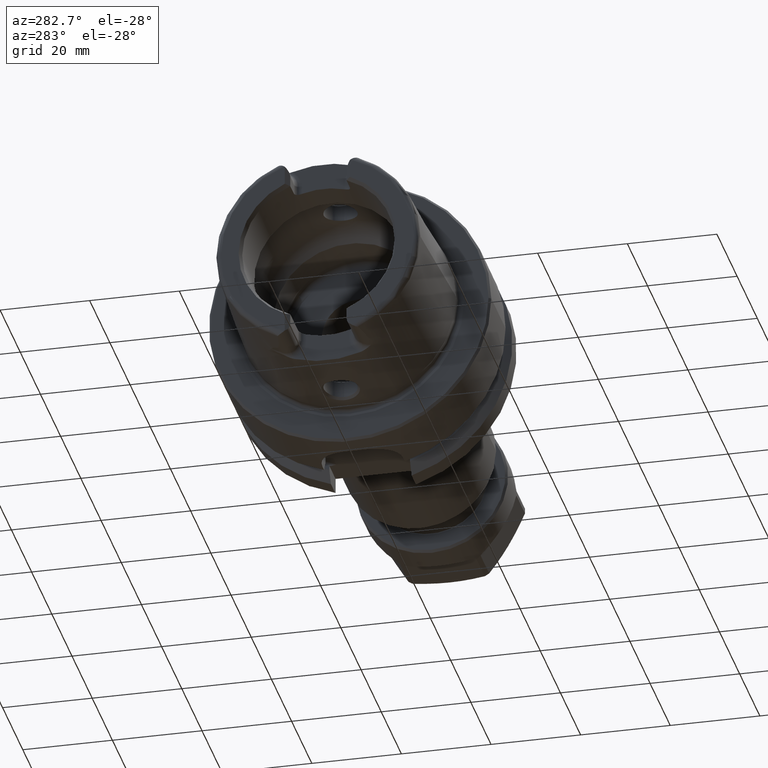
[diagram: clean part render]
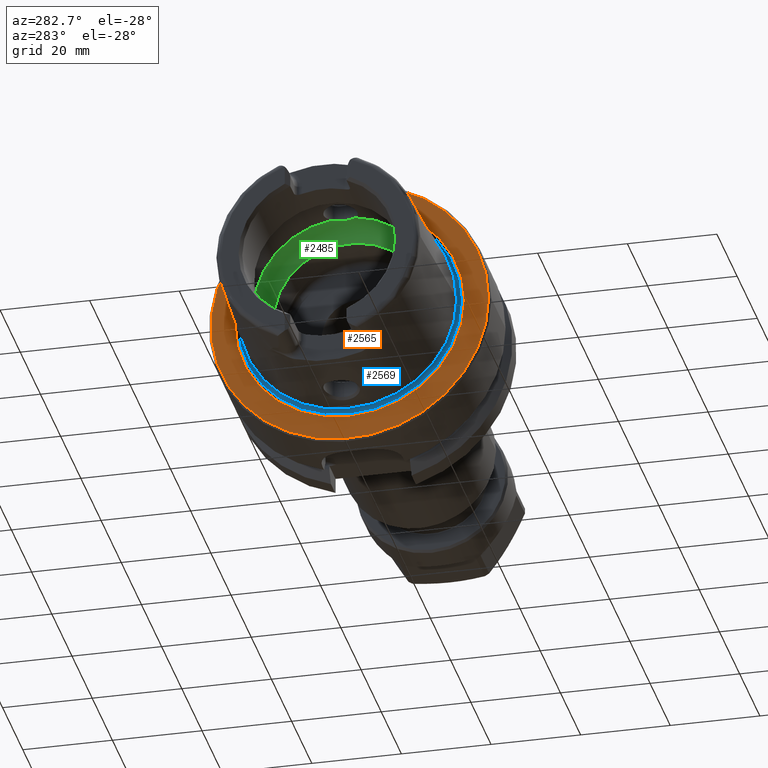
[diagram: same view with three faces highlighted in distinct colors, each labeled with its STEP entity id]
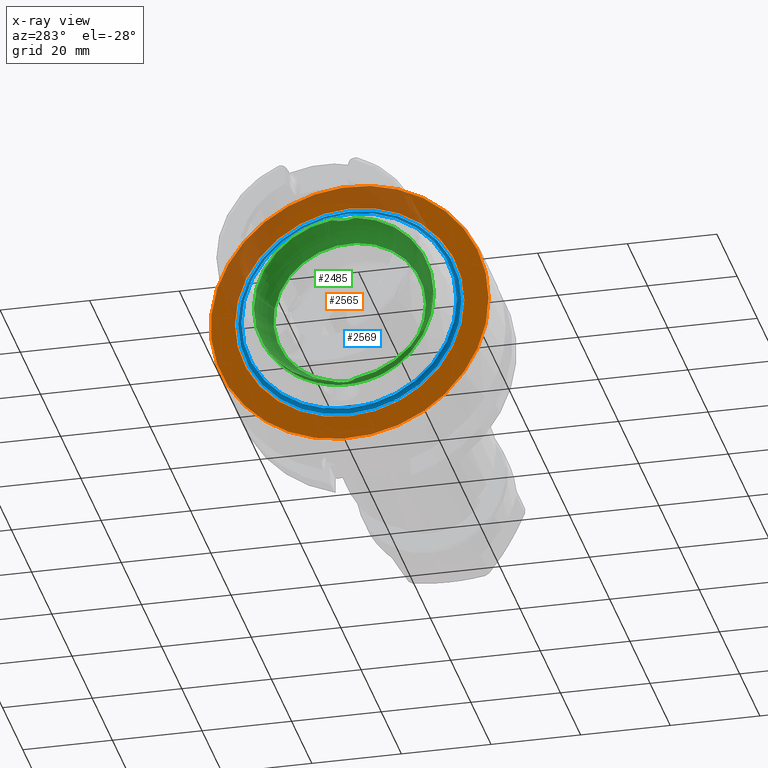
[diagram: x-ray of the same camera — body ghosted, the three highlighted faces saturated]
A machine part, auxiliary view with three faces highlighted in distinct colors.
The next image is the same camera in x-ray (body ghosted, the three faces saturated) — at least one of them is partly hidden behind the body in this view.
Their STEP definitions:

[orange] entity #2565 — the highlighted planar face has unit normal (-1, -0, -0).
#165=FACE_BOUND('',#549,.T.);
#214=PLANE('',#2918);
#389=FACE_OUTER_BOUND('',#548,.T.);
#548=EDGE_LOOP('',(#2274));
#549=EDGE_LOOP('',(#2275));
#987=CIRCLE('',#2917,25.5879092835167);
#988=CIRCLE('',#2919,31.);
#1221=VERTEX_POINT('',#5230);
#1222=VERTEX_POINT('',#5234);
#1581=EDGE_CURVE('',#1221,#1221,#987,.T.);
#1582=EDGE_CURVE('',#1222,#1222,#988,.T.);
#2274=ORIENTED_EDGE('',*,*,#1582,.F.);
#2275=ORIENTED_EDGE('',*,*,#1581,.T.);
#2565=ADVANCED_FACE('',(#389,#165),#214,.T.);
#2917=AXIS2_PLACEMENT_3D('',#5232,#3592,#3593);
#2918=AXIS2_PLACEMENT_3D('',#5233,#3594,#3595);
#2919=AXIS2_PLACEMENT_3D('',#5235,#3596,#3597);
#3592=DIRECTION('center_axis',(1.,0.,0.));
#3593=DIRECTION('ref_axis',(0.,0.,-1.));
#3594=DIRECTION('center_axis',(-1.,0.,0.));
#3595=DIRECTION('ref_axis',(0.,0.,1.));
#3596=DIRECTION('center_axis',(1.,0.,0.));
#3597=DIRECTION('ref_axis',(0.,0.,-1.));
#5230=CARTESIAN_POINT('',(-3.55618312575245E-16,-25.5879092835167,-3.13361512009315E-15));
#5232=CARTESIAN_POINT('Origin',(0.,0.,0.));
#5233=CARTESIAN_POINT('Origin',(0.,31.,0.));
#5234=CARTESIAN_POINT('',(-5.89805981832114E-16,-31.,-3.7964050773568E-15));
#5235=CARTESIAN_POINT('Origin',(0.,0.,0.));

[blue] entity #2569 — the highlighted toroidal blend (fillet) surface has major radius 24.8204 mm and minor (blend) radius 0.8 mm.
#153=TOROIDAL_SURFACE('',#2926,24.8204308617234,0.8);
#393=FACE_OUTER_BOUND('',#553,.T.);
#553=EDGE_LOOP('',(#2289,#2290,#2291,#2292,#2293,#2294));
#985=CIRCLE('',#2915,24.9317693424915);
#986=CIRCLE('',#2916,24.9317693424915);
#990=CIRCLE('',#2924,24.0204308617234);
#991=CIRCLE('',#2925,24.0204308617234);
#992=CIRCLE('',#2927,0.8);
#1219=VERTEX_POINT('',#5226);
#1220=VERTEX_POINT('',#5227);
#1224=VERTEX_POINT('',#5243);
#1225=VERTEX_POINT('',#5244);
#1578=EDGE_CURVE('',#1219,#1220,#985,.T.);
#1579=EDGE_CURVE('',#1220,#1219,#986,.T.);
#1586=EDGE_CURVE('',#1224,#1225,#990,.T.);
#1588=EDGE_CURVE('',#1225,#1224,#991,.T.);
#1589=EDGE_CURVE('',#1225,#1220,#992,.T.);
#2289=ORIENTED_EDGE('',*,*,#1586,.T.);
#2290=ORIENTED_EDGE('',*,*,#1589,.T.);
#2291=ORIENTED_EDGE('',*,*,#1578,.F.);
#2292=ORIENTED_EDGE('',*,*,#1579,.F.);
#2293=ORIENTED_EDGE('',*,*,#1589,.F.);
#2294=ORIENTED_EDGE('',*,*,#1588,.T.);
#2569=ADVANCED_FACE('',(#393),#153,.F.);
#2915=AXIS2_PLACEMENT_3D('',#5228,#3587,#3588);
#2916=AXIS2_PLACEMENT_3D('',#5229,#3589,#3590);
#2924=AXIS2_PLACEMENT_3D('',#5245,#3608,#3609);
#2925=AXIS2_PLACEMENT_3D('',#5247,#3611,#3612);
#2926=AXIS2_PLACEMENT_3D('',#5248,#3613,#3614);
#2927=AXIS2_PLACEMENT_3D('',#5249,#3615,#3616);
#3587=DIRECTION('center_axis',(1.,0.,0.));
#3588=DIRECTION('ref_axis',(0.,0.,-1.));
#3589=DIRECTION('center_axis',(1.,0.,0.));
#3590=DIRECTION('ref_axis',(0.,0.,-1.));
#3608=DIRECTION('center_axis',(1.,0.,0.));
#3609=DIRECTION('ref_axis',(0.,0.,-1.));
#3611=DIRECTION('center_axis',(1.,0.,0.));
#3612=DIRECTION('ref_axis',(0.,0.,-1.));
#3613=DIRECTION('center_axis',(1.,0.,0.));
#3614=DIRECTION('ref_axis',(0.,0.,-1.));
#3615=DIRECTION('center_axis',(0.,-1.,-1.22464679914735E-16));
#3616=DIRECTION('ref_axis',(0.,-1.22464679914735E-16,1.));
#5226=CARTESIAN_POINT('',(0.092214454993257,-24.9317693424915,-3.05326115223623E-15));
#5227=CARTESIAN_POINT('',(0.0922144549932569,-3.05326115223623E-15,24.9317693424915));
#5228=CARTESIAN_POINT('Origin',(0.0922144549932569,0.,0.));
#5229=CARTESIAN_POINT('Origin',(0.0922144549932569,0.,0.));
#5243=CARTESIAN_POINT('',(-0.7,-24.0204308617234,-2.94165437689499E-15));
#5244=CARTESIAN_POINT('',(-0.7,-2.94165437689499E-15,24.0204308617234));
#5245=CARTESIAN_POINT('Origin',(-0.7,0.,0.));
#5247=CARTESIAN_POINT('Origin',(-0.7,0.,0.));
#5248=CARTESIAN_POINT('Origin',(-0.7,0.,0.));
#5249=CARTESIAN_POINT('Origin',(-0.7,-3.03962612082678E-15,24.8204308617234));

[green] entity #2485 — the highlighted toroidal blend (fillet) surface has major radius 12 mm and minor (blend) radius 8 mm.
#75=B_SPLINE_CURVE_WITH_KNOTS('',3,(#4335,#4336,#4337,#4338,#4339,#4340,
#4341,#4342,#4343,#4344,#4345,#4346),.UNSPECIFIED.,.F.,.F.,(4,2,2,2,2,4),
(-0.560647090003115,-0.432465132423936,-0.371738630353782,-0.32053783623797,
-0.287500355516274,-0.280385270121909),.UNSPECIFIED.);
#77=B_SPLINE_CURVE_WITH_KNOTS('',3,(#4379,#4380,#4381,#4382,#4383,#4384,
#4385,#4386,#4387,#4388),.UNSPECIFIED.,.F.,.F.,(4,2,2,2,4),(-0.280385270121909,
-0.256917987419631,-0.21744735037608,-0.138661357565599,0.),
 .UNSPECIFIED.);
#80=B_SPLINE_CURVE_WITH_KNOTS('',3,(#4504,#4505,#4506,#4507,#4508,#4509,
#4510,#4511,#4512,#4513,#4514,#4515),.UNSPECIFIED.,.F.,.F.,(4,2,2,2,2,4),
(-0.560647090003256,-0.432465132424011,-0.371738630353825,-0.32053783623799,
-0.287500355516289,-0.280385270121924),.UNSPECIFIED.);
#82=B_SPLINE_CURVE_WITH_KNOTS('',3,(#4548,#4549,#4550,#4551,#4552,#4553,
#4554,#4555,#4556,#4557),.UNSPECIFIED.,.F.,.F.,(4,2,2,2,4),(-0.280385270121924,
-0.256917987419636,-0.217447350376074,-0.138661357565593,0.),
 .UNSPECIFIED.);
#133=TOROIDAL_SURFACE('',#2761,12.,8.);
#309=FACE_OUTER_BOUND('',#464,.T.);
#464=EDGE_LOOP('',(#1850,#1851,#1852,#1853,#1854,#1855,#1856,#1857,#1858,
#1859,#1860));
#906=CIRCLE('',#2756,20.);
#909=CIRCLE('',#2759,20.);
#910=CIRCLE('',#2760,20.);
#911=CIRCLE('',#2762,17.);
#912=CIRCLE('',#2763,17.);
#913=CIRCLE('',#2764,8.);
#1106=VERTEX_POINT('',#4332);
#1107=VERTEX_POINT('',#4334);
#1108=VERTEX_POINT('',#4347);
#1111=VERTEX_POINT('',#4502);
#1112=VERTEX_POINT('',#4503);
#1113=VERTEX_POINT('',#4516);
#1114=VERTEX_POINT('',#4560);
#1117=VERTEX_POINT('',#4570);
#1118=VERTEX_POINT('',#4571);
#1385=EDGE_CURVE('',#1107,#1106,#75,.T.);
#1387=EDGE_CURVE('',#1106,#1108,#77,.T.);
#1391=EDGE_CURVE('',#1111,#1112,#80,.T.);
#1393=EDGE_CURVE('',#1112,#1113,#82,.T.);
#1395=EDGE_CURVE('',#1114,#1111,#906,.T.);
#1399=EDGE_CURVE('',#1108,#1114,#909,.T.);
#1400=EDGE_CURVE('',#1113,#1107,#910,.T.);
#1401=EDGE_CURVE('',#1117,#1118,#911,.T.);
#1402=EDGE_CURVE('',#1118,#1117,#912,.T.);
#1403=EDGE_CURVE('',#1118,#1106,#913,.T.);
#1850=ORIENTED_EDGE('',*,*,#1401,.F.);
#1851=ORIENTED_EDGE('',*,*,#1402,.F.);
#1852=ORIENTED_EDGE('',*,*,#1403,.T.);
#1853=ORIENTED_EDGE('',*,*,#1387,.T.);
#1854=ORIENTED_EDGE('',*,*,#1399,.T.);
#1855=ORIENTED_EDGE('',*,*,#1395,.T.);
#1856=ORIENTED_EDGE('',*,*,#1391,.T.);
#1857=ORIENTED_EDGE('',*,*,#1393,.T.);
#1858=ORIENTED_EDGE('',*,*,#1400,.T.);
#1859=ORIENTED_EDGE('',*,*,#1385,.T.);
#1860=ORIENTED_EDGE('',*,*,#1403,.F.);
#2485=ADVANCED_FACE('',(#309),#133,.F.);
#2756=AXIS2_PLACEMENT_3D('',#4561,#3209,#3210);
#2759=AXIS2_PLACEMENT_3D('',#4567,#3216,#3217);
#2760=AXIS2_PLACEMENT_3D('',#4568,#3218,#3219);
#2761=AXIS2_PLACEMENT_3D('',#4569,#3220,#3221);
#2762=AXIS2_PLACEMENT_3D('',#4572,#3222,#3223);
#2763=AXIS2_PLACEMENT_3D('',#4573,#3224,#3225);
#2764=AXIS2_PLACEMENT_3D('',#4574,#3226,#3227);
#3209=DIRECTION('center_axis',(-1.,0.,0.));
#3210=DIRECTION('ref_axis',(0.,0.,1.));
#3216=DIRECTION('center_axis',(-1.,0.,0.));
#3217=DIRECTION('ref_axis',(0.,0.,1.));
#3218=DIRECTION('center_axis',(-1.,0.,0.));
#3219=DIRECTION('ref_axis',(0.,0.,1.));
#3220=DIRECTION('center_axis',(-1.,0.,0.));
#3221=DIRECTION('ref_axis',(0.,0.,1.));
#3222=DIRECTION('center_axis',(-1.,0.,0.));
#3223=DIRECTION('ref_axis',(0.,0.,1.));
#3224=DIRECTION('center_axis',(-1.,0.,0.));
#3225=DIRECTION('ref_axis',(0.,0.,1.));
#3226=DIRECTION('center_axis',(0.,1.,-1.22464679914735E-16));
#3227=DIRECTION('ref_axis',(0.,-1.22464679914735E-16,-1.));
#4332=CARTESIAN_POINT('',(-5.25,3.07683831259085E-16,-19.9378825251564));
#4334=CARTESIAN_POINT('',(-6.2449979983984,2.54410376580264,-19.8375284758165));
#4335=CARTESIAN_POINT('Ctrl Pts',(-6.2449979983984,2.54410376580263,-19.8375284758165));
#4336=CARTESIAN_POINT('Ctrl Pts',(-5.9563832733696,2.23156378381208,-19.877610794847));
#4337=CARTESIAN_POINT('Ctrl Pts',(-5.72238184052007,1.87139505615745,-19.9007586679726));
#4338=CARTESIAN_POINT('Ctrl Pts',(-5.47415257397377,1.29299577523533,-19.9221291461079));
#4339=CARTESIAN_POINT('Ctrl Pts',(-5.40951125063364,1.10084807786171,-19.9269865934584));
#4340=CARTESIAN_POINT('Ctrl Pts',(-5.31953029252225,0.738763665580492,-19.9333991732415));
#4341=CARTESIAN_POINT('Ctrl Pts',(-5.28971989928313,0.57048989328573,-19.9353426103026));
#4342=CARTESIAN_POINT('Ctrl Pts',(-5.25970604483208,0.291260075331645,-19.9372753146995));
#4343=CARTESIAN_POINT('Ctrl Pts',(-5.25276504295341,0.181279004510485,-19.9377089305339));
#4344=CARTESIAN_POINT('Ctrl Pts',(-5.25022501552319,0.0474369436209427,
-19.9378684144199));
#4345=CARTESIAN_POINT('Ctrl Pts',(-5.25,0.0237178817918345,-19.9378825251564));
#4346=CARTESIAN_POINT('Ctrl Pts',(-5.25,1.73633857888389E-16,-19.9378825251564));
#4347=CARTESIAN_POINT('',(-6.2449979983984,-2.54410376580264,-19.8375284758165));
#4379=CARTESIAN_POINT('Ctrl Pts',(-5.25,1.73633857888389E-16,-19.9378825251564));
#4380=CARTESIAN_POINT('Ctrl Pts',(-5.25,-0.0782273446147222,-19.9378825251564));
#4381=CARTESIAN_POINT('Ctrl Pts',(-5.25244785081342,-0.15644185230388,-19.9377296492436));
#4382=CARTESIAN_POINT('Ctrl Pts',(-5.26557067654327,-0.365860616871457,
-19.9368989370107));
#4383=CARTESIAN_POINT('Ctrl Pts',(-5.2807081654794,-0.496671474530444,-19.9359382432917));
#4384=CARTESIAN_POINT('Ctrl Pts',(-5.34656166936447,-0.885366242555149,
-19.9315392091305));
#4385=CARTESIAN_POINT('Ctrl Pts',(-5.41752174824152,-1.13897710923821,-19.9266508951874));
#4386=CARTESIAN_POINT('Ctrl Pts',(-5.68473945553282,-1.81246400136134,-19.9044561094296));
#4387=CARTESIAN_POINT('Ctrl Pts',(-5.93280828188796,-2.20603449935731,-19.880884849314));
#4388=CARTESIAN_POINT('Ctrl Pts',(-6.2449979983984,-2.54410376580263,-19.8375284758165));
#4502=CARTESIAN_POINT('',(-6.2449979983984,-2.54410376580264,19.8375284758165));
#4503=CARTESIAN_POINT('',(-5.25,4.81156178856766E-16,19.9378825251564));
#4504=CARTESIAN_POINT('Ctrl Pts',(-6.2449979983984,-2.54410376580264,19.8375284758165));
#4505=CARTESIAN_POINT('Ctrl Pts',(-5.9563832733696,-2.23156378381209,19.877610794847));
#4506=CARTESIAN_POINT('Ctrl Pts',(-5.72238184052007,-1.87139505615746,19.9007586679726));
#4507=CARTESIAN_POINT('Ctrl Pts',(-5.47415257397376,-1.29299577523533,19.9221291461079));
#4508=CARTESIAN_POINT('Ctrl Pts',(-5.40951125063363,-1.10084807786172,19.9269865934584));
#4509=CARTESIAN_POINT('Ctrl Pts',(-5.31953029252225,-0.738763665580501,
19.9333991732415));
#4510=CARTESIAN_POINT('Ctrl Pts',(-5.28971989928313,-0.570489893285745,
19.9353426103026));
#4511=CARTESIAN_POINT('Ctrl Pts',(-5.25970604483207,-0.291260075331669,
19.9372753146995));
#4512=CARTESIAN_POINT('Ctrl Pts',(-5.2527650429534,-0.181279004510531,19.9377089305339));
#4513=CARTESIAN_POINT('Ctrl Pts',(-5.25022501552319,-0.0474369436209401,
19.9378684144199));
#4514=CARTESIAN_POINT('Ctrl Pts',(-5.25,-0.0237178817918311,19.9378825251564));
#4515=CARTESIAN_POINT('Ctrl Pts',(-5.25,5.15920899939407E-16,19.9378825251564));
#4516=CARTESIAN_POINT('',(-6.2449979983984,2.54410376580264,19.8375284758165));
#4548=CARTESIAN_POINT('Ctrl Pts',(-5.25,5.15920899939407E-16,19.9378825251564));
#4549=CARTESIAN_POINT('Ctrl Pts',(-5.25,0.0782273446147462,19.9378825251564));
#4550=CARTESIAN_POINT('Ctrl Pts',(-5.25244785081342,0.156441852303891,19.9377296492436));
#4551=CARTESIAN_POINT('Ctrl Pts',(-5.26557067654326,0.36586061687142,19.9368989370107));
#4552=CARTESIAN_POINT('Ctrl Pts',(-5.28070816547939,0.496671474530425,19.9359382432917));
#4553=CARTESIAN_POINT('Ctrl Pts',(-5.34656166936446,0.885366242555101,19.9315392091305));
#4554=CARTESIAN_POINT('Ctrl Pts',(-5.41752174824151,1.13897710923819,19.9266508951874));
#4555=CARTESIAN_POINT('Ctrl Pts',(-5.68473945553283,1.81246400136138,19.9044561094296));
#4556=CARTESIAN_POINT('Ctrl Pts',(-5.93280828188797,2.20603449935733,19.880884849314));
#4557=CARTESIAN_POINT('Ctrl Pts',(-6.2449979983984,2.54410376580264,19.8375284758165));
#4560=CARTESIAN_POINT('',(-6.2449979983984,-20.,2.44929359829471E-15));
#4561=CARTESIAN_POINT('Origin',(-6.2449979983984,0.,0.));
#4567=CARTESIAN_POINT('Origin',(-6.2449979983984,0.,0.));
#4568=CARTESIAN_POINT('Origin',(-6.2449979983984,0.,0.));
#4569=CARTESIAN_POINT('Origin',(-6.2449979983984,0.,0.));
#4570=CARTESIAN_POINT('',(0.,-17.,2.0818995585505E-15));
#4571=CARTESIAN_POINT('',(0.,-2.0818995585505E-15,-17.));
#4572=CARTESIAN_POINT('Origin',(0.,0.,0.));
#4573=CARTESIAN_POINT('Origin',(0.,0.,0.));
#4574=CARTESIAN_POINT('Origin',(-6.2449979983984,-1.46957615897682E-15,
-12.));